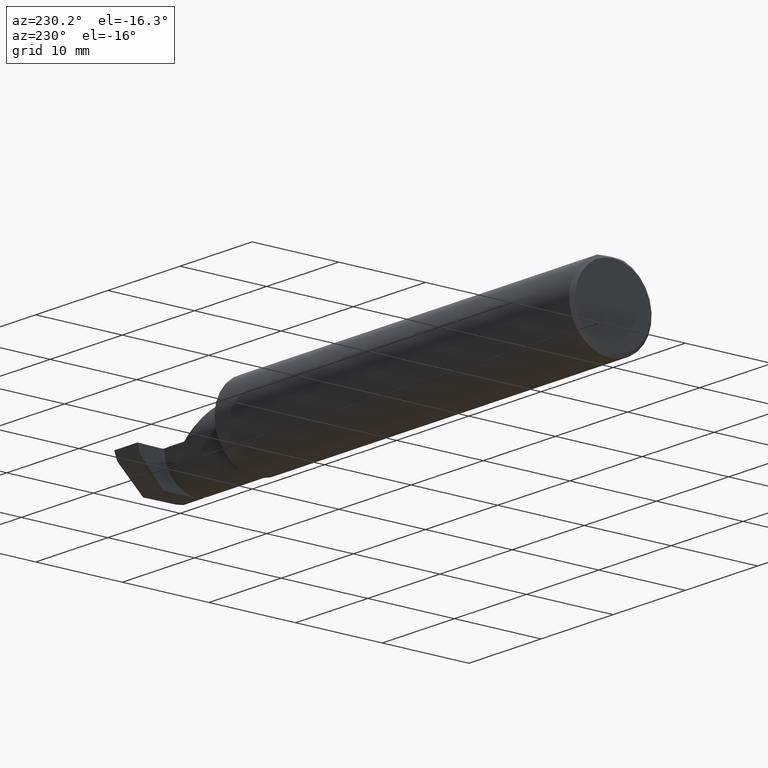
[diagram: clean part render]
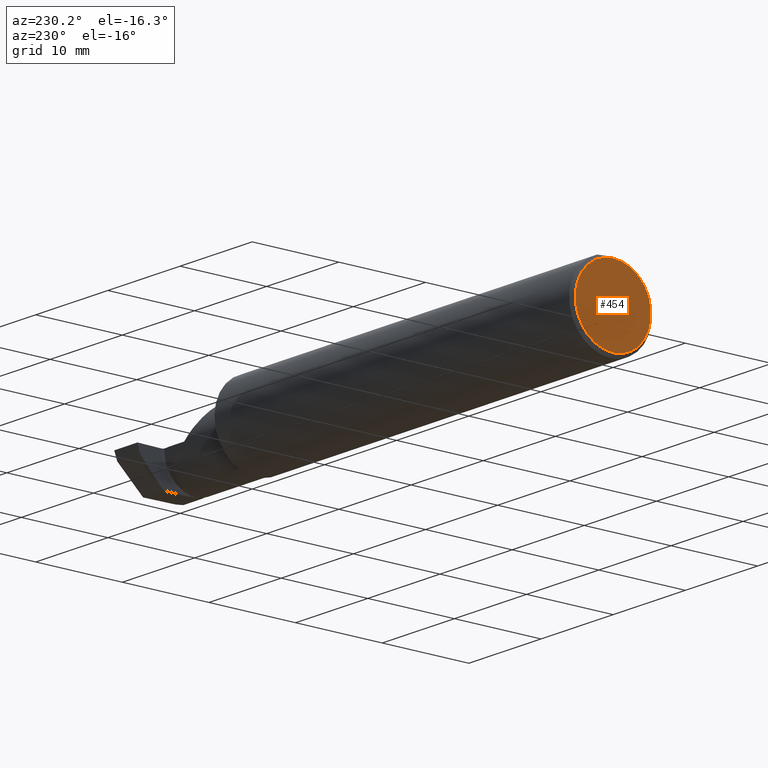
[diagram: same view with one face highlighted and labeled with its STEP entity id]
A machine part, auxiliary view. The second image highlights one B-rep face of the part: STEP entity #454.
In plain terms, the highlighted planar face has unit normal (1, 0, 0).
Its self-contained STEP definition (entity closure, byte-faithful):
#10 = FACE_OUTER_BOUND ( 'NONE', #208, .T. ) ;
#46 = CARTESIAN_POINT ( 'NONE',  ( 0.000000000000000000, 0.000000000000000000, 0.000000000000000000 ) ) ;
#139 = ORIENTED_EDGE ( 'NONE', *, *, #616, .T. ) ;
#172 = CARTESIAN_POINT ( 'NONE',  ( 0.000000000000000000, 0.000000000000000000, 0.000000000000000000 ) ) ;
#173 = ORIENTED_EDGE ( 'NONE', *, *, #1009, .T. ) ;
#208 = EDGE_LOOP ( 'NONE', ( #139, #173 ) ) ;
#261 = DIRECTION ( 'NONE',  ( -1.000000000000000000, -0.000000000000000000, -0.000000000000000000 ) ) ;
#269 = CARTESIAN_POINT ( 'NONE',  ( 0.000000000000000000, 0.000000000000000000, 0.000000000000000000 ) ) ;
#282 = VERTEX_POINT ( 'NONE', #631 ) ;
#343 = CARTESIAN_POINT ( 'NONE',  ( 0.000000000000000000, 2.202527268266524596E-17, 0.1723499999999999754 ) ) ;
#361 = DIRECTION ( 'NONE',  ( -1.000000000000000000, -0.000000000000000000, -0.000000000000000000 ) ) ;
#423 = DIRECTION ( 'NONE',  ( 0.000000000000000000, 0.000000000000000000, -1.000000000000000000 ) ) ;
#454 = ADVANCED_FACE ( 'NONE', ( #10 ), #653, .F. ) ;
#510 = CIRCLE ( 'NONE', #989, 0.1723499999999999754 ) ;
#538 = AXIS2_PLACEMENT_3D ( 'NONE', #46, #361, #698 ) ;
#592 = DIRECTION ( 'NONE',  ( 0.000000000000000000, 0.000000000000000000, 1.000000000000000000 ) ) ;
#616 = EDGE_CURVE ( 'NONE', #282, #816, #510, .T. ) ;
#631 = CARTESIAN_POINT ( 'NONE',  ( 0.000000000000000000, 0.000000000000000000, -0.1723499999999999754 ) ) ;
#653 = PLANE ( 'NONE',  #905 ) ;
#698 = DIRECTION ( 'NONE',  ( 0.000000000000000000, 0.000000000000000000, 1.000000000000000000 ) ) ;
#816 = VERTEX_POINT ( 'NONE', #343 ) ;
#905 = AXIS2_PLACEMENT_3D ( 'NONE', #269, #909, #423 ) ;
#909 = DIRECTION ( 'NONE',  ( 1.000000000000000000, 0.000000000000000000, 0.000000000000000000 ) ) ;
#989 = AXIS2_PLACEMENT_3D ( 'NONE', #172, #261, #592 ) ;
#997 = CIRCLE ( 'NONE', #538, 0.1723499999999999754 ) ;
#1009 = EDGE_CURVE ( 'NONE', #816, #282, #997, .T. ) ;